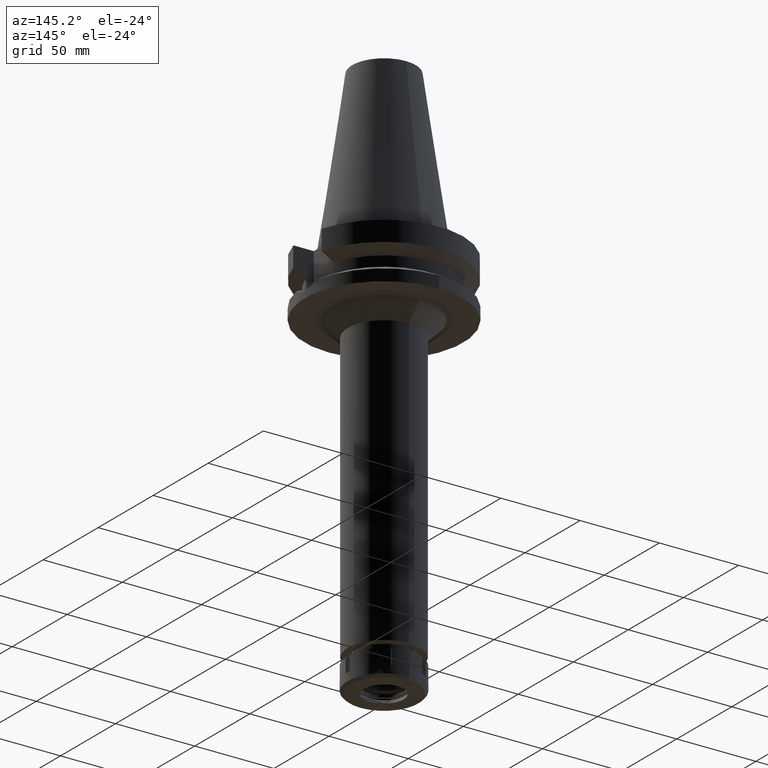
[diagram: clean part render]
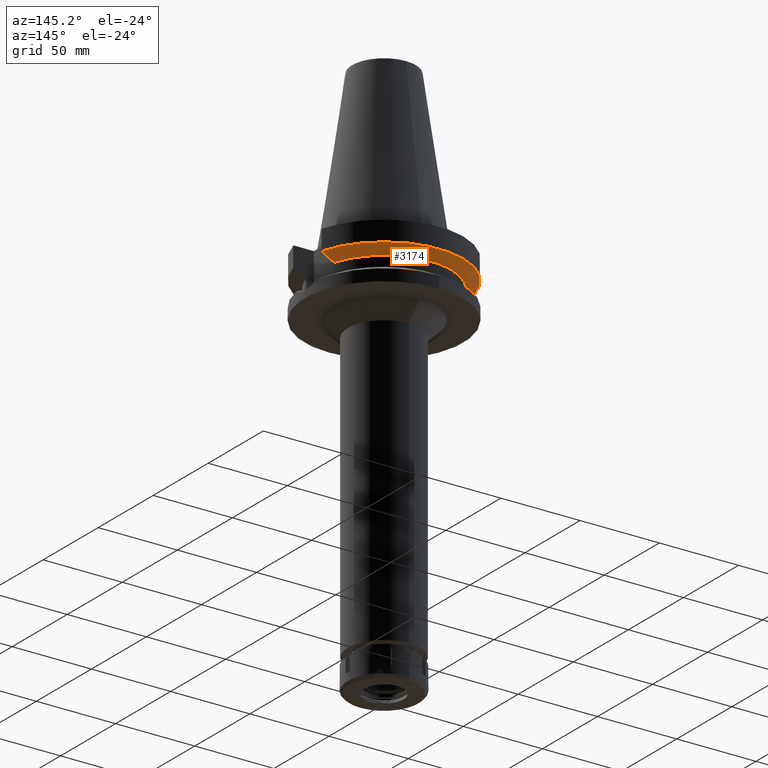
[diagram: same view with one face highlighted and labeled with its STEP entity id]
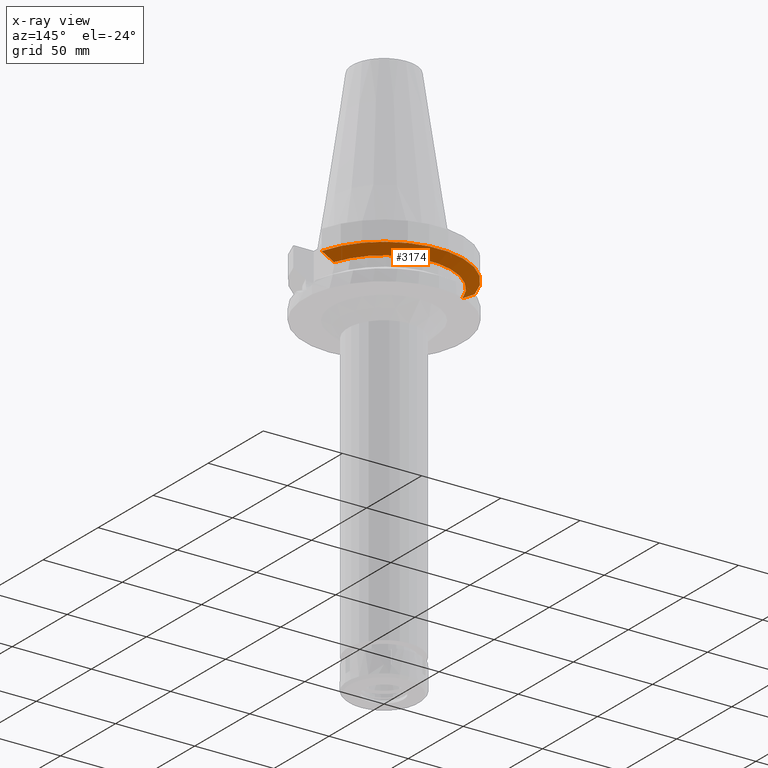
[diagram: x-ray of the same camera — body ghosted, the highlighted face saturated]
A machine part, auxiliary view. The second image highlights one B-rep face of the part: STEP entity #3174.
The next image is the same camera in x-ray: the body ghosted, the highlighted face saturated — about 1% of this face is hidden behind the body in this view.
In plain terms, the highlighted conical surface has half-angle 60 deg.
Its self-contained STEP definition (entity closure, byte-faithful):
#57 = DIRECTION ( 'NONE',  ( 0.0000000000000000000, 1.000000000000000000, 0.0000000000000000000 ) ) ;
#60 = CARTESIAN_POINT ( 'NONE',  ( 0.0000000000000000000, 1.006319759053999930E-14, -15.66269223573000069 ) ) ;
#105 = CARTESIAN_POINT ( 'NONE',  ( -48.32056912780999625, 12.85000385852000093, -15.66265767138999898 ) ) ;
#240 = B_SPLINE_CURVE_WITH_KNOTS ( 'NONE', 3,
 ( #3230, #2894, #2079, #105 ),
 .UNSPECIFIED., .F., .F.,
 ( 4, 4 ),
 ( 0.0000000000000000000, 1.000000000000000000 ),
 .UNSPECIFIED. ) ;
#295 = CARTESIAN_POINT ( 'NONE',  ( 0.0000000000000000000, 1.006319759053999930E-14, -17.82775574519000017 ) ) ;
#340 = CONICAL_SURFACE ( 'NONE', #3299, 46.25000000000000000, 1.047197551196400456 ) ;
#429 = CARTESIAN_POINT ( 'NONE',  ( -48.32056912780999625, 12.85000385852000093, -15.66265767138999898 ) ) ;
#435 = CIRCLE ( 'NONE', #2467, 50.00000000000002842 ) ;
#470 = DIRECTION ( 'NONE',  ( -0.9531960443486575674, 0.3023529411764863672, 0.0000000000000000000 ) ) ;
#571 = EDGE_LOOP ( 'NONE', ( #2266, #2366, #1346, #1607 ) ) ;
#718 = CARTESIAN_POINT ( 'NONE',  ( 40.51083297203000200, 12.84999657246999938, -19.99284555851999912 ) ) ;
#854 = DIRECTION ( 'NONE',  ( 0.0000000000000000000, 0.0000000000000000000, 1.000000000000000000 ) ) ;
#987 = CARTESIAN_POINT ( 'NONE',  ( 42.90862489466591256, 12.84999313797018594, -18.67324780284967645 ) ) ;
#1065 = VERTEX_POINT ( 'NONE', #1383 ) ;
#1190 = DIRECTION ( 'NONE',  ( 0.9664114030784185516, 0.2570000000000048357, 0.0000000000000000000 ) ) ;
#1206 = CARTESIAN_POINT ( 'NONE',  ( -40.51083188481999997, 12.84999999999999964, -19.99281925464999787 ) ) ;
#1346 = ORIENTED_EDGE ( 'NONE', *, *, #2816, .T. ) ;
#1383 = CARTESIAN_POINT ( 'NONE',  ( 48.32056912815000516, 12.85000385725999905, -15.66265768273000170 ) ) ;
#1607 = ORIENTED_EDGE ( 'NONE', *, *, #2156, .F. ) ;
#1824 = AXIS2_PLACEMENT_3D ( 'NONE', #1884, #3281, #470 ) ;
#1884 = CARTESIAN_POINT ( 'NONE',  ( 0.0000000000000000000, 1.006319759053999930E-14, -19.99281925464999787 ) ) ;
#2023 = EDGE_CURVE ( 'NONE', #3141, #2032, #240, .T. ) ;
#2032 = VERTEX_POINT ( 'NONE', #429 ) ;
#2067 = CARTESIAN_POINT ( 'NONE',  ( 48.32056912815000516, 12.85000385725999905, -15.66265768273000170 ) ) ;
#2079 = CARTESIAN_POINT ( 'NONE',  ( -45.51180301983914944, 12.85000771239541351, -17.22986482407244324 ) ) ;
#2156 = EDGE_CURVE ( 'NONE', #3141, #2419, #3394, .T. ) ;
#2266 = ORIENTED_EDGE ( 'NONE', *, *, #2023, .T. ) ;
#2366 = ORIENTED_EDGE ( 'NONE', *, *, #2558, .F. ) ;
#2419 = VERTEX_POINT ( 'NONE', #718 ) ;
#2467 = AXIS2_PLACEMENT_3D ( 'NONE', #60, #3399, #1190 ) ;
#2558 = EDGE_CURVE ( 'NONE', #1065, #2032, #435, .T. ) ;
#2816 = EDGE_CURVE ( 'NONE', #1065, #2419, #3505, .T. ) ;
#2894 = CARTESIAN_POINT ( 'NONE',  ( -42.90863232185251519, 12.84999314245379587, -18.67324368411542324 ) ) ;
#2898 = CARTESIAN_POINT ( 'NONE',  ( 40.51083297203000200, 12.84999657246999938, -19.99284555851999912 ) ) ;
#3116 = FACE_OUTER_BOUND ( 'NONE', #571, .T. ) ;
#3141 = VERTEX_POINT ( 'NONE', #1206 ) ;
#3174 = ADVANCED_FACE ( 'NONE', ( #3116 ), #340, .T. ) ;
#3175 = CARTESIAN_POINT ( 'NONE',  ( 45.51179901593025079, 12.85000770987397090, -17.22986705846993161 ) ) ;
#3230 = CARTESIAN_POINT ( 'NONE',  ( -40.51083188481999997, 12.84999999999999964, -19.99281925464999787 ) ) ;
#3281 = DIRECTION ( 'NONE',  ( 0.0000000000000000000, 0.0000000000000000000, -1.000000000000000000 ) ) ;
#3299 = AXIS2_PLACEMENT_3D ( 'NONE', #295, #854, #57 ) ;
#3394 = CIRCLE ( 'NONE', #1824, 42.50000000000002132 ) ;
#3399 = DIRECTION ( 'NONE',  ( 0.0000000000000000000, 0.0000000000000000000, 1.000000000000000000 ) ) ;
#3505 = B_SPLINE_CURVE_WITH_KNOTS ( 'NONE', 3,
 ( #2067, #3175, #987, #2898 ),
 .UNSPECIFIED., .F., .F.,
 ( 4, 4 ),
 ( 0.0000000000000000000, 1.000000000000000000 ),
 .UNSPECIFIED. ) ;